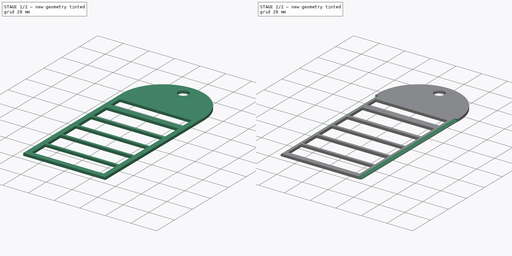
[diagram: build sequence overview — one tinted view per stage of 2, left to right]
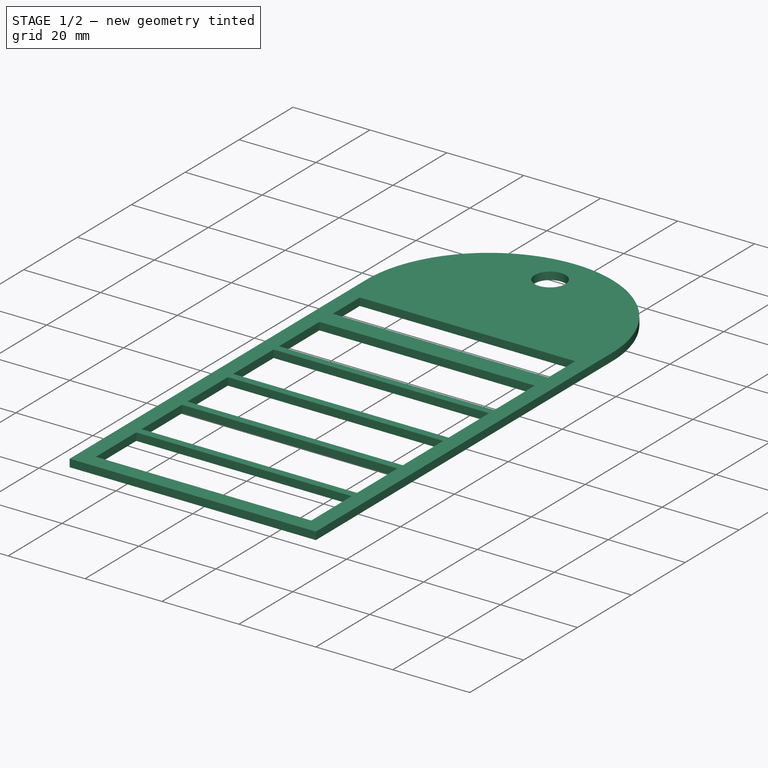
[diagram: stage 1 of 2 — iso view after this stage's code; geometry added in this stage tinted green]
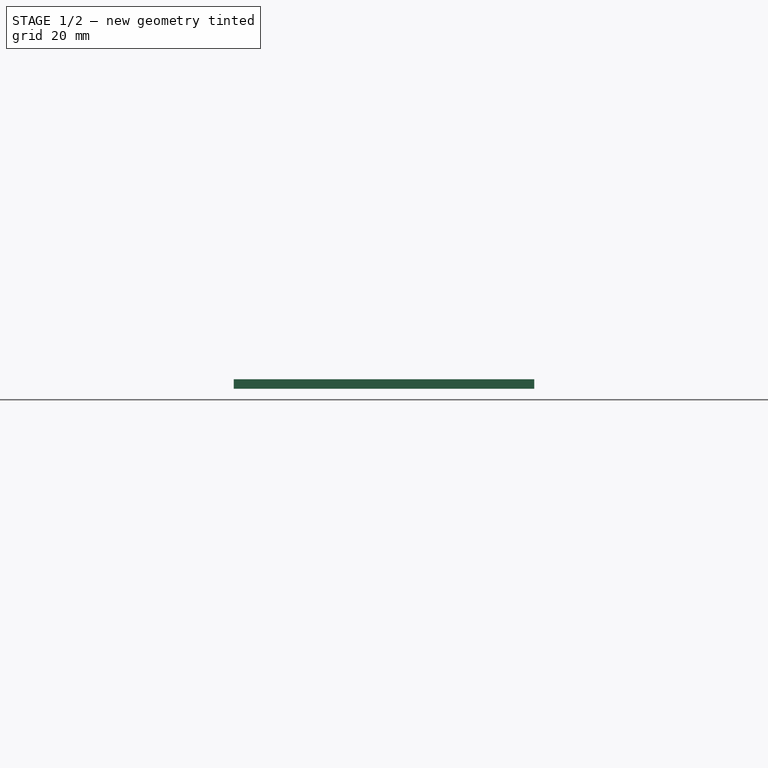
[diagram: stage 1 of 2 — front view after this stage's code; geometry added in this stage tinted green]
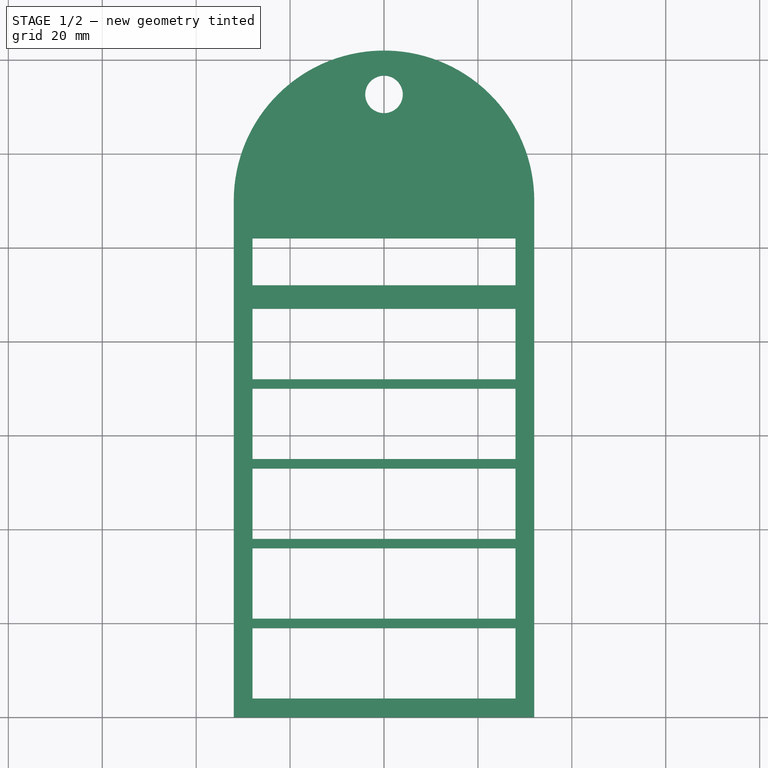
[diagram: stage 1 of 2 — top view after this stage's code; geometry added in this stage tinted green]
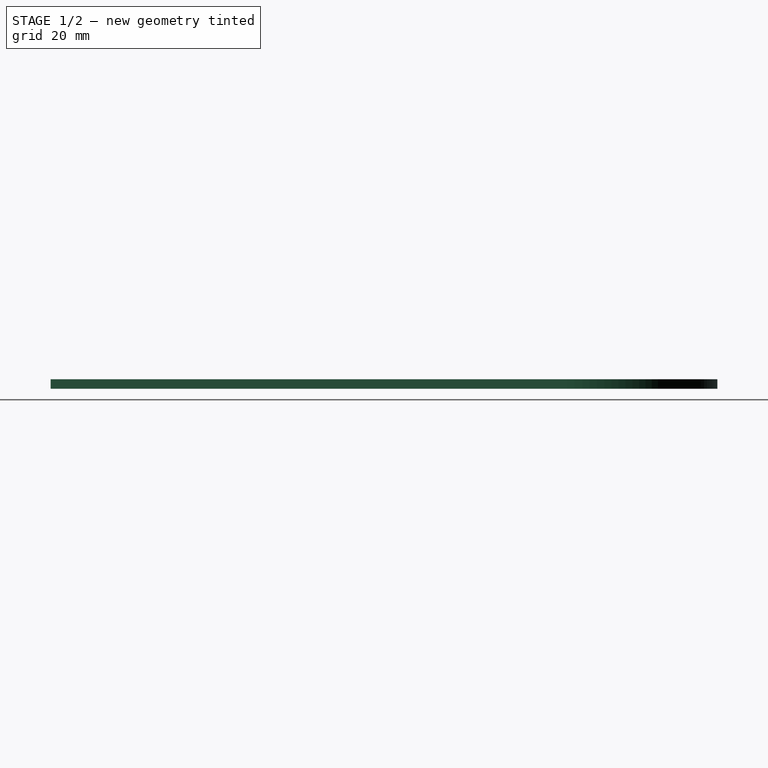
[diagram: stage 1 of 2 — right view after this stage's code; geometry added in this stage tinted green]
FCSTD DOCUMENT  (FreeCAD 0.18R16146 (Git))
Label: Bandolino_Back_V3
License: All rights reserved
LicenseURL: http://en.wikipedia.org/wiki/All_rights_reserved
objects: Sketcher::SketchObject×3, PartDesign::Plane×2, PartDesign::Pocket×2, PartDesign::Pad×1, PartDesign::Fillet×1, PartDesign::Body×1
note: 13 computed .brp shape members not serialized (recipe doc carries the construction recipe); baked Part::Feature solids carry a one-line shape summary decoded from their .brp

FEATURE [Sketcher::SketchObject] Sketch
  MapMode = 5
  Support = -> [XY_Plane]
  sketch-geometry (4):
    g0: LineSegment StartX=-32 StartY=110 StartZ=0 EndX=-32 EndY=0 EndZ=0
    g1: LineSegment StartX=32 StartY=0 StartZ=0 EndX=32 EndY=110 EndZ=0
    g2: ArcOfCircle CenterX=3.3e-15 CenterY=110 CenterZ=0 NormalX=0 NormalY=0 NormalZ=1 AngleXU=0 Radius=32 StartAngle=1.29526e-06 EndAngle=3.14159
    g3: LineSegment StartX=-32 StartY=0 StartZ=0 EndX=32 EndY=0 EndZ=0
  constraints (12):
    c: PointOnObject(g0,g-1)
    c: Vertical(g0)
    c: Vertical(g1)
    c: DistanceX(g0,g1) = 64
    c: Symmetric(g0,g1,g-1)
    c: PointOnObject(g2,g-2)
    c: Coincident(g2,g0)
    c: Coincident(g2,g1)
    c: Horizontal(g0,g2)
    c: DistanceY(g0,g0) = 110
    c: Coincident(g0,g3)
    c: Coincident(g1,g3)
FEATURE [PartDesign::Pad] Pad
  Length = 2
  Length2 = 100
  Profile = -> Sketch
  Type = 0
FEATURE [PartDesign::Plane] DatumPlane
  Length = 83.7261
  MapMode = 5
  Placement = pos=(0,0,2) rot=(0,0,1;0rad)
  ResizeMode = 0
  Support = -> [Pad]
  Width = 171.726
FEATURE [Sketcher::SketchObject] Sketch001
  ExternalGeometry = -> [Pad]
  MapMode = 5
  Placement = pos=(0,0,2) rot=(0,0,1;0rad)
  Support = -> [DatumPlane]
  sketch-geometry (25):
    g0: LineSegment StartX=-28 StartY=19 StartZ=0 EndX=28 EndY=19 EndZ=0
    g1: LineSegment StartX=28 StartY=19 StartZ=0 EndX=28 EndY=4 EndZ=0
    g2: LineSegment StartX=28 StartY=4 StartZ=0 EndX=-28 EndY=4 EndZ=0
    g3: LineSegment StartX=-28 StartY=4 StartZ=0 EndX=-28 EndY=19 EndZ=0
    g4: LineSegment StartX=-28 StartY=36 StartZ=0 EndX=28 EndY=36 EndZ=0
    g5: LineSegment StartX=28 StartY=36 StartZ=0 EndX=28 EndY=21 EndZ=0
    g6: LineSegment StartX=28 StartY=21 StartZ=0 EndX=-28 EndY=21 EndZ=0
    g7: LineSegment StartX=-28 StartY=21 StartZ=0 EndX=-28 EndY=36 EndZ=0
    g8: LineSegment StartX=-28 StartY=53 StartZ=0 EndX=28 EndY=53 EndZ=0
    g9: LineSegment StartX=28 StartY=53 StartZ=0 EndX=28 EndY=38 EndZ=0
    g10: LineSegment StartX=28 StartY=38 StartZ=0 EndX=-28 EndY=38 EndZ=0
    g11: LineSegment StartX=-28 StartY=38 StartZ=0 EndX=-28 EndY=53 EndZ=0
    g12: LineSegment StartX=-28 StartY=70 StartZ=0 EndX=28 EndY=70 EndZ=0
    g13: LineSegment StartX=28 StartY=70 StartZ=0 EndX=28 EndY=55 EndZ=0
    g14: LineSegment StartX=28 StartY=55 StartZ=0 EndX=-28 EndY=55 EndZ=0
    g15: LineSegment StartX=-28 StartY=55 StartZ=0 EndX=-28 EndY=70 EndZ=0
    g16: LineSegment StartX=-28 StartY=87 StartZ=0 EndX=28 EndY=87 EndZ=0
    g17: LineSegment StartX=28 StartY=87 StartZ=0 EndX=28 EndY=72 EndZ=0
    g18: LineSegment StartX=28 StartY=72 StartZ=0 EndX=-28 EndY=72 EndZ=0
    g19: LineSegment StartX=-28 StartY=72 StartZ=0 EndX=-28 EndY=87 EndZ=0
    g20: LineSegment StartX=-28 StartY=102 StartZ=0 EndX=28 EndY=102 EndZ=0
    g21: LineSegment StartX=28 StartY=102 StartZ=0 EndX=28 EndY=92 EndZ=0
    g22: LineSegment StartX=28 StartY=92 StartZ=0 EndX=-28 EndY=92 EndZ=0
    g23: LineSegment StartX=-28 StartY=92 StartZ=0 EndX=-28 EndY=102 EndZ=0
    g24: Circle CenterX=0 CenterY=132.668 CenterZ=0 NormalX=0 NormalY=0 NormalZ=1 AngleXU=0 Radius=4
  constraints (68):
    c: Coincident(g0,g1)
    c: Coincident(g1,g2)
    c: Coincident(g2,g3)
    c: Coincident(g3,g0)
    c: Horizontal(g0)
    c: Vertical(g1)
    c: Vertical(g3)
    c: Symmetric(g1,g2,g-2)
    c: DistanceY(g-3,g2) = 4
    c: DistanceY(g1,g1) = 15
    c: Coincident(g4,g5)
    c: Coincident(g5,g6)
    c: Coincident(g6,g7)
    c: Coincident(g7,g4)
    c: Horizontal(g4)
    c: Vertical(g5)
    c: Vertical(g7)
    c: Coincident(g8,g9)
    c: Coincident(g9,g10)
    c: Coincident(g10,g11)
    c: Coincident(g11,g8)
    c: Horizontal(g8)
    c: Vertical(g9)
    c: Vertical(g11)
    c: Coincident(g12,g13)
    c: Coincident(g13,g14)
    c: Coincident(g14,g15)
    c: Coincident(g15,g12)
    c: Horizontal(g12)
    c: Vertical(g13)
    c: Vertical(g15)
    c: DistanceY(g0,g5) = 2
    c: DistanceY(g4,g9) = 2
    c: DistanceY(g8,g13) = 2
    c: Coincident(g16,g17)
    c: Coincident(g17,g18)
    c: Coincident(g18,g19)
    c: Coincident(g19,g16)
    c: Horizontal(g16)
    c: Vertical(g17)
    c: Vertical(g19)
    c: Symmetric(g6,g5,g-2)
    c: Symmetric(g9,g10,g-2)
    c: Symmetric(g13,g14,g-2)
    c: Symmetric(g18,g17,g-2)
    c: Equal(g2,g6)
    c: Equal(g6,g10)
    c: Equal(g10,g14)
    c: Equal(g14,g18)
    c: Equal(g1,g5)
    c: Equal(g5,g9)
    c: Equal(g9,g13)
    c: Equal(g13,g17)
    c: DistanceY(g12,g17) = 2
    c: Coincident(g20,g21)
    c: Coincident(g21,g22)
    c: Coincident(g22,g23)
    c: Coincident(g23,g20)
    c: Horizontal(g20)
    c: Vertical(g21)
    c: Vertical(g23)
    c: Symmetric(g22,g21,g-2)
    c: Equal(g18,g22)
    c: DistanceY(g16,g21) = 5
    c: DistanceY(g21,g21) = 10
    c: PointOnObject(g24,g-2)
    c: Diameter(g24) = 8
    c: DistanceX(g2,g2) = 56
FEATURE [PartDesign::Pocket] Pocket
  BaseFeature = -> Pad
  Length = 5
  Length2 = 100
  Profile = -> Sketch001
  Type = 1
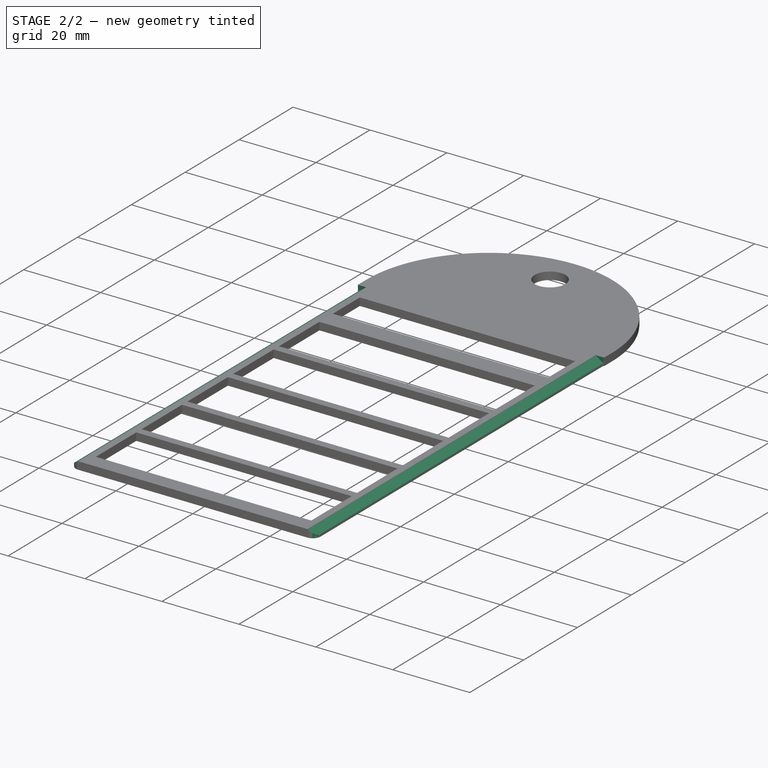
[diagram: stage 2 of 2 — iso view after this stage's code; geometry added in this stage tinted green]
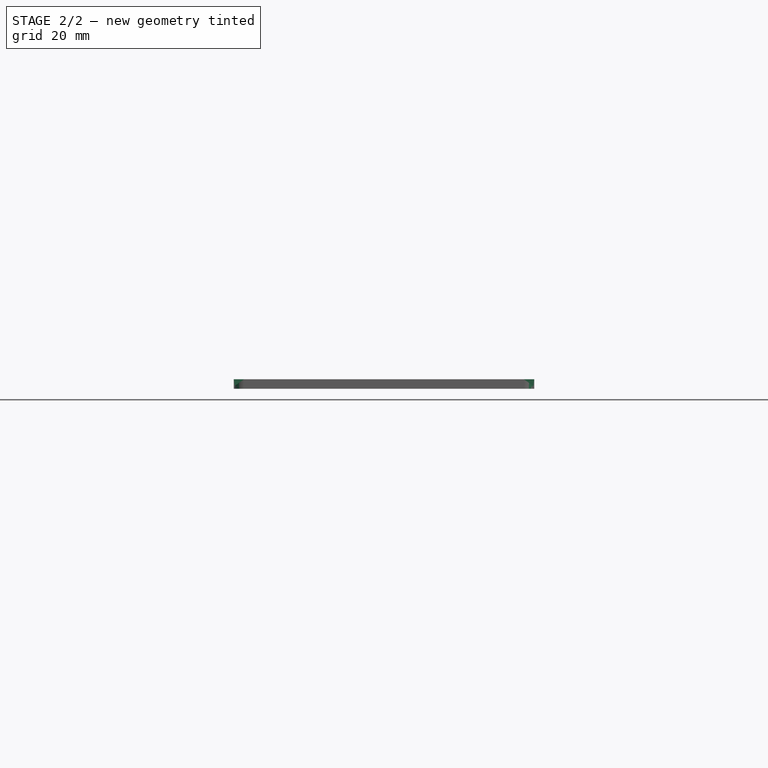
[diagram: stage 2 of 2 — front view after this stage's code; geometry added in this stage tinted green]
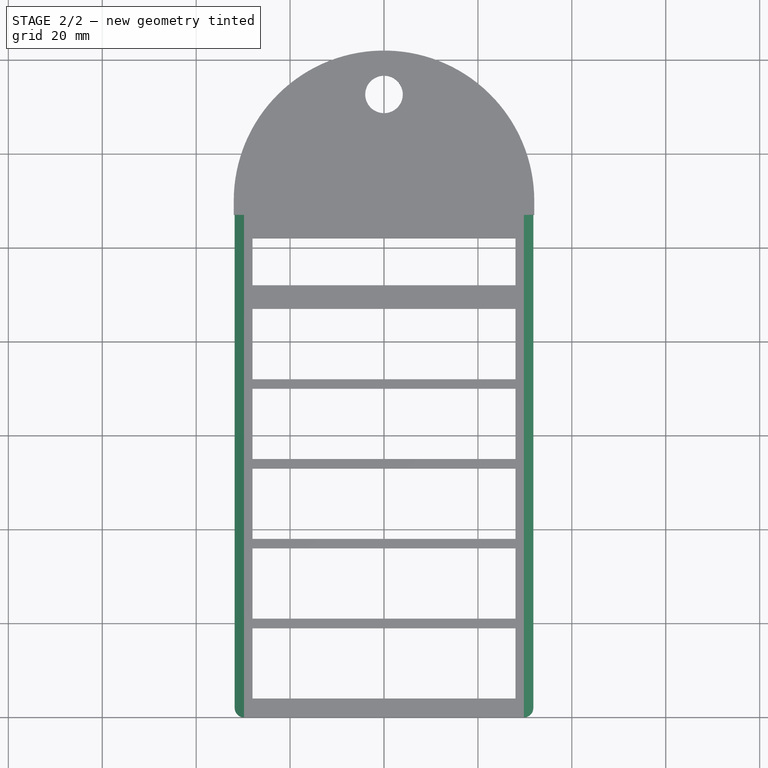
[diagram: stage 2 of 2 — top view after this stage's code; geometry added in this stage tinted green]
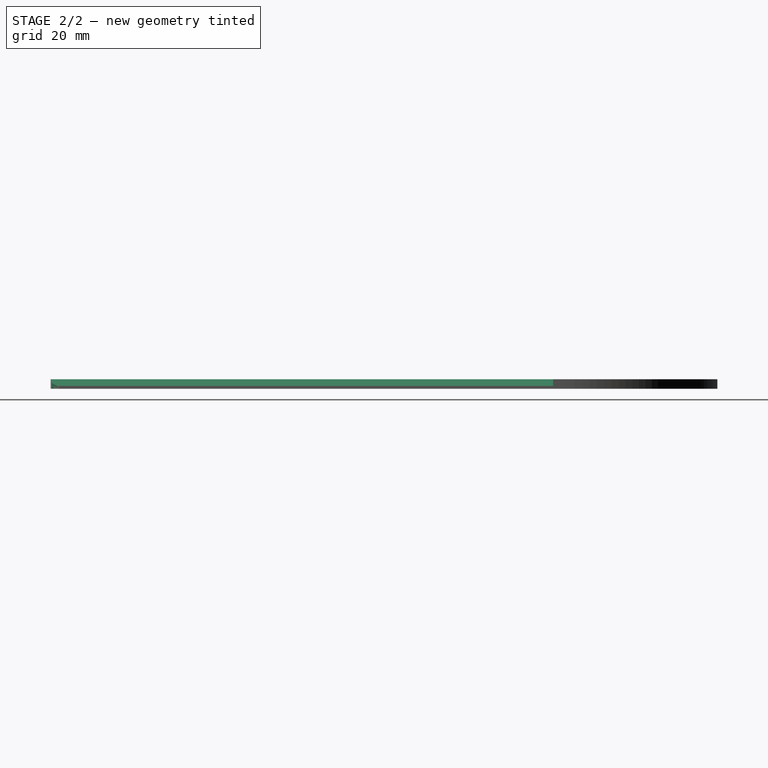
[diagram: stage 2 of 2 — right view after this stage's code; geometry added in this stage tinted green]
FEATURE [PartDesign::Plane] DatumPlane001
  Length = 71.1554
  MapMode = 5
  Placement = pos=(0,0,0) rot=(1,0,0;1.5708rad)
  ResizeMode = 0
  Support = -> [Pocket]
  Width = 27.1554
FEATURE [Sketcher::SketchObject] Sketch002
  MapMode = 5
  Placement = pos=(0,0,0) rot=(1,0,0;1.5708rad)
  Support = -> [DatumPlane001]
  sketch-geometry (10):
    g0: LineSegment StartX=29.8 StartY=2 StartZ=0 EndX=-29.8 EndY=2 EndZ=0
    g1: LineSegment StartX=-29.8 StartY=2 StartZ=0 EndX=-31.8 EndY=0.6 EndZ=0
    g2: LineSegment StartX=-31.8 StartY=0.6 StartZ=0 EndX=-31.8 EndY=0 EndZ=0
    g3: LineSegment StartX=-31.8 StartY=0 StartZ=0 EndX=31.8 EndY=0 EndZ=0
    g4: LineSegment StartX=31.8 StartY=0 StartZ=0 EndX=31.8 EndY=0.6 EndZ=0
    g5: LineSegment StartX=31.8 StartY=0.6 StartZ=0 EndX=29.8 EndY=2 EndZ=0
    g6: LineSegment StartX=-35.4065 StartY=4.04819 StartZ=0 EndX=35.2389 EndY=4.04819 EndZ=0
    g7: LineSegment StartX=35.2389 StartY=4.04819 StartZ=0 EndX=35.2389 EndY=-4.61872 EndZ=0
    g8: LineSegment StartX=35.2389 StartY=-4.61872 StartZ=0 EndX=-35.4065 EndY=-4.61872 EndZ=0
    g9: LineSegment StartX=-35.4065 StartY=-4.61872 StartZ=0 EndX=-35.4065 EndY=4.04819 EndZ=0
  constraints (25):
    c: Coincident(g1,g2)
    c: PointOnObject(g2,g-1)
    c: Vertical(g2)
    c: Coincident(g2,g3)
    c: PointOnObject(g3,g-1)
    c: Coincident(g3,g4)
    c: Vertical(g4)
    c: Coincident(g4,g5)
    c: Coincident(g5,g0)
    c: DistanceX(g0,g0) = 59.6
    c: Distance(g0,g3) = 2
    c: DistanceX(g0,g3) = 2
    c: DistanceY(g4,g4) = 0.6
    c: Coincident(g0,g1)
    c: DistanceX(g2,g0) = 2
    c: DistanceY(g2,g2) = 0.6
    c: Symmetric(g0,g0,g-2)
    c: Coincident(g6,g7)
    c: Coincident(g7,g8)
    c: Coincident(g8,g9)
    c: Coincident(g9,g6)
    c: Horizontal(g6)
    c: Horizontal(g8)
    c: Vertical(g7)
    c: Vertical(g9)
FEATURE [PartDesign::Pocket] Pocket001
  BaseFeature = -> Pocket
  Length = 107
  Length2 = 100
  Profile = -> Sketch002
  Type = 0
FEATURE [PartDesign::Fillet] Fillet
  Base = -> Pocket001 [Edge52,Edge83]
  BaseFeature = -> Pocket001
  Radius = 2
FEATURE [PartDesign::Body] Body
  Group = -> [Sketch,Pad,DatumPlane,Sketch001,Pocket,DatumPlane001,Sketch002,Pocket001,Fillet]
  Origin = -> Origin
  Tip = -> Fillet
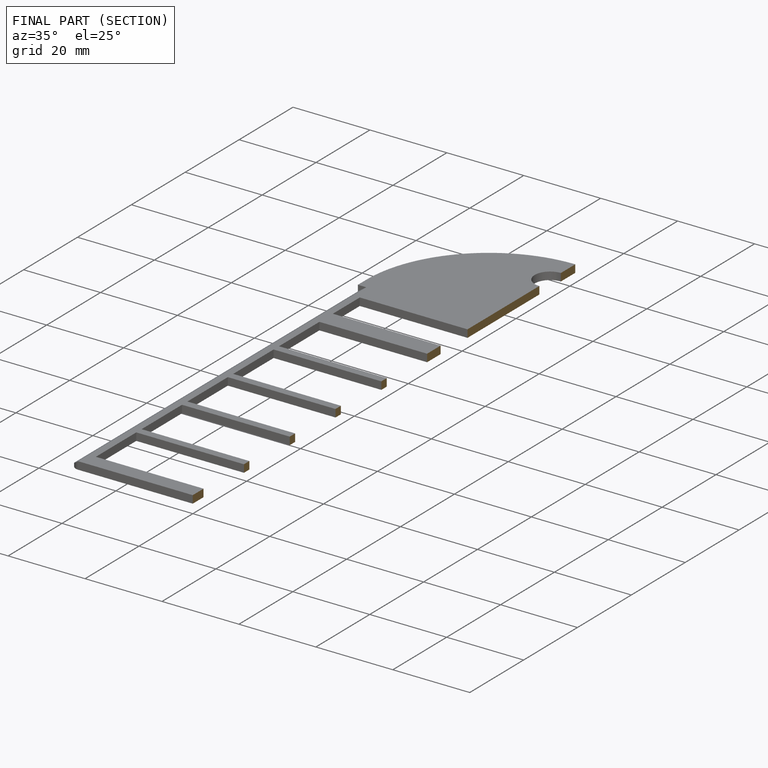
[diagram: finished part — half-section view (interior)]
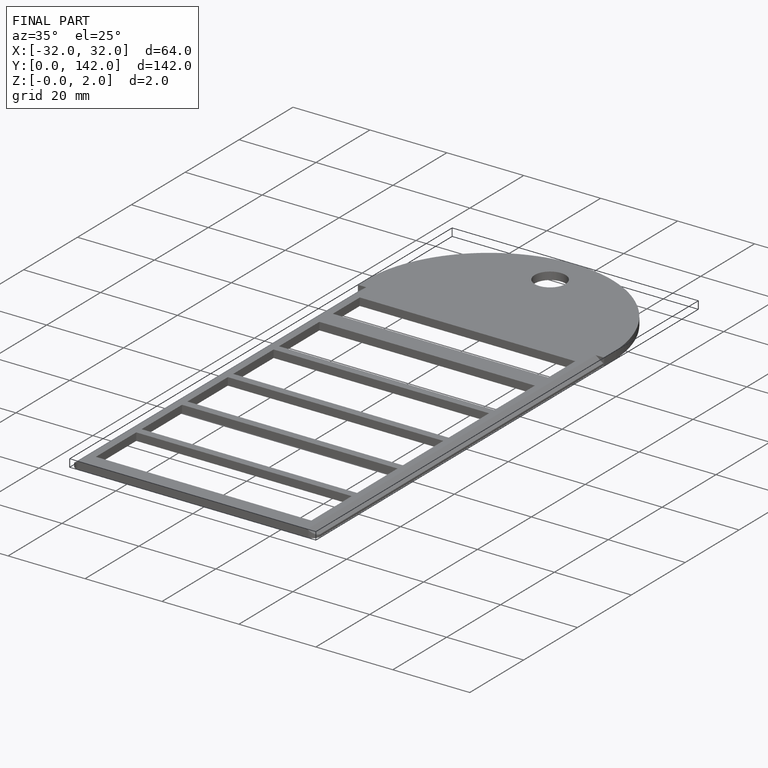
[diagram: finished part — iso view with bounding-box wireframe]
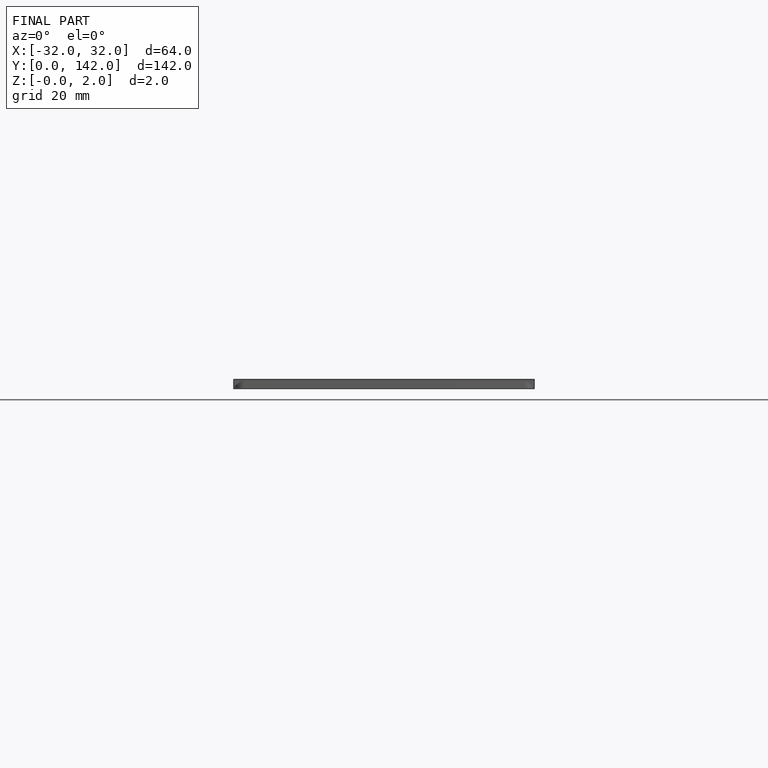
[diagram: finished part — front view with bounding-box wireframe]
